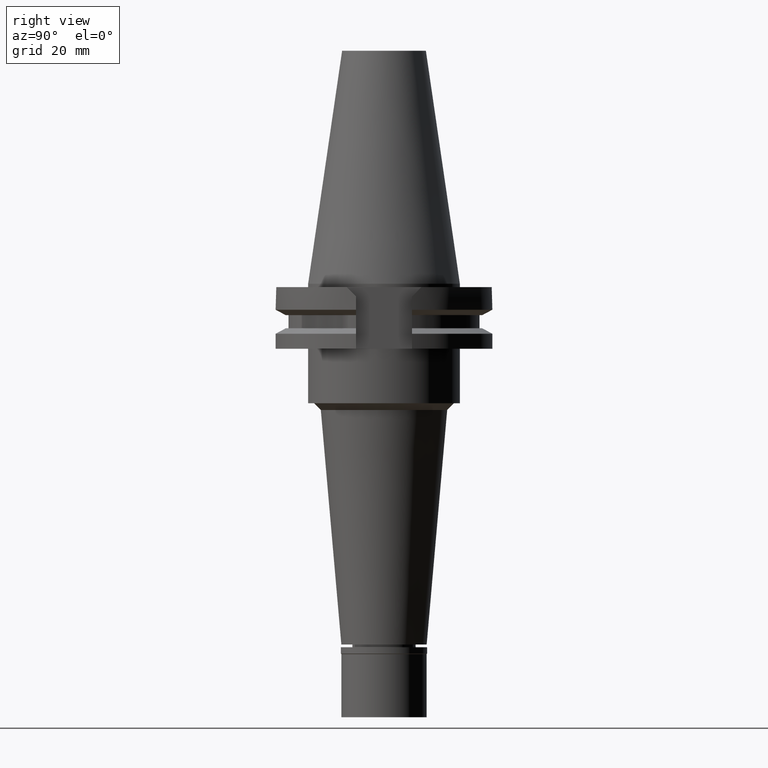
[diagram: clean part render]
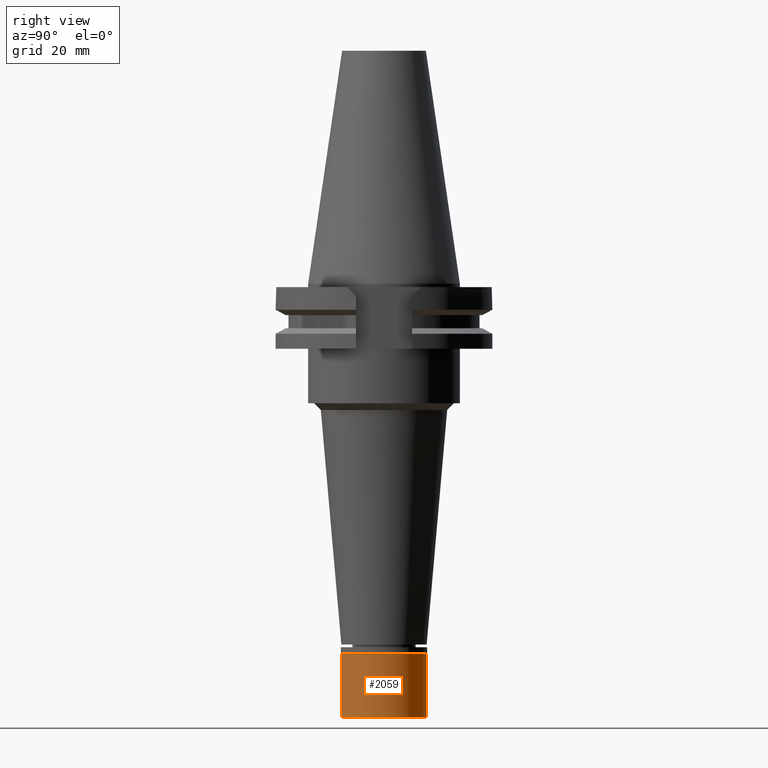
[diagram: same view with one face highlighted and labeled with its STEP entity id]
A machine part, right view. The second image highlights one B-rep face of the part: STEP entity #2059.
In plain terms, the highlighted cylindrical surface (partial cylindrical patch) has radius 12.5 mm, axis along (0, 0, -1).
Its self-contained STEP definition (entity closure, byte-faithful):
#187 = DIRECTION ( 'NONE',  ( 0.0000000000000000000, 0.0000000000000000000, -1.000000000000000000 ) ) ;
#417 = CYLINDRICAL_SURFACE ( 'NONE', #1048, 12.50000000000000000 ) ;
#499 = VERTEX_POINT ( 'NONE', #1510 ) ;
#502 = CARTESIAN_POINT ( 'NONE',  ( 0.0000000000000000000, 12.50000000000000000, -2.000000000000000000 ) ) ;
#584 = EDGE_CURVE ( 'NONE', #1215, #499, #1593, .T. ) ;
#743 = DIRECTION ( 'NONE',  ( 0.0000000000000000000, -1.000000000000000000, 0.0000000000000000000 ) ) ;
#805 = LINE ( 'NONE', #502, #1277 ) ;
#980 = AXIS2_PLACEMENT_3D ( 'NONE', #1524, #2561, #2089 ) ;
#1048 = AXIS2_PLACEMENT_3D ( 'NONE', #1274, #1973, #743 ) ;
#1096 = DIRECTION ( 'NONE',  ( 0.0000000000000000000, 0.0000000000000000000, 1.000000000000000000 ) ) ;
#1098 = EDGE_CURVE ( 'NONE', #499, #2887, #2779, .T. ) ;
#1215 = VERTEX_POINT ( 'NONE', #2425 ) ;
#1274 = CARTESIAN_POINT ( 'NONE',  ( 0.0000000000000000000, 0.0000000000000000000, 0.0000000000000000000 ) ) ;
#1277 = VECTOR ( 'NONE', #1547, 1000.000000000000000 ) ;
#1403 = DIRECTION ( 'NONE',  ( 0.0000000000000000000, -1.000000000000000000, 0.0000000000000000000 ) ) ;
#1409 = ORIENTED_EDGE ( 'NONE', *, *, #584, .T. ) ;
#1491 = ORIENTED_EDGE ( 'NONE', *, *, #1098, .T. ) ;
#1510 = CARTESIAN_POINT ( 'NONE',  ( 0.0000000000000000000, -12.50000000000000000, -2.000000000000000000 ) ) ;
#1524 = CARTESIAN_POINT ( 'NONE',  ( 0.0000000000000000000, 0.0000000000000000000, -2.000000000000000000 ) ) ;
#1547 = DIRECTION ( 'NONE',  ( 0.0000000000000000000, 0.0000000000000000000, -1.000000000000000000 ) ) ;
#1569 = CARTESIAN_POINT ( 'NONE',  ( 0.0000000000000000000, 12.50000000000000000, -20.50000000000000000 ) ) ;
#1593 = CIRCLE ( 'NONE', #980, 12.50000000000000000 ) ;
#1672 = VERTEX_POINT ( 'NONE', #1569 ) ;
#1973 = DIRECTION ( 'NONE',  ( 0.0000000000000000000, 0.0000000000000000000, -1.000000000000000000 ) ) ;
#2059 = ADVANCED_FACE ( 'NONE', ( #2165 ), #417, .T. ) ;
#2089 = DIRECTION ( 'NONE',  ( 0.0000000000000000000, 1.000000000000000000, 0.0000000000000000000 ) ) ;
#2118 = EDGE_LOOP ( 'NONE', ( #1409, #1491, #2190, #2834 ) ) ;
#2165 = FACE_OUTER_BOUND ( 'NONE', #2118, .T. ) ;
#2190 = ORIENTED_EDGE ( 'NONE', *, *, #3017, .T. ) ;
#2198 = AXIS2_PLACEMENT_3D ( 'NONE', #2654, #1096, #1403 ) ;
#2425 = CARTESIAN_POINT ( 'NONE',  ( 0.0000000000000000000, 12.50000000000000000, -2.000000000000000000 ) ) ;
#2561 = DIRECTION ( 'NONE',  ( 0.0000000000000000000, 0.0000000000000000000, -1.000000000000000000 ) ) ;
#2594 = CARTESIAN_POINT ( 'NONE',  ( 0.0000000000000000000, -12.50000000000000000, -2.000000000000000000 ) ) ;
#2599 = CARTESIAN_POINT ( 'NONE',  ( 0.0000000000000000000, -12.50000000000000000, -20.50000000000000000 ) ) ;
#2654 = CARTESIAN_POINT ( 'NONE',  ( 0.0000000000000000000, 0.0000000000000000000, -20.50000000000000000 ) ) ;
#2779 = LINE ( 'NONE', #2594, #2954 ) ;
#2809 = EDGE_CURVE ( 'NONE', #1215, #1672, #805, .T. ) ;
#2834 = ORIENTED_EDGE ( 'NONE', *, *, #2809, .F. ) ;
#2887 = VERTEX_POINT ( 'NONE', #2599 ) ;
#2954 = VECTOR ( 'NONE', #187, 1000.000000000000000 ) ;
#3017 = EDGE_CURVE ( 'NONE', #2887, #1672, #3338, .T. ) ;
#3338 = CIRCLE ( 'NONE', #2198, 12.50000000000000000 ) ;